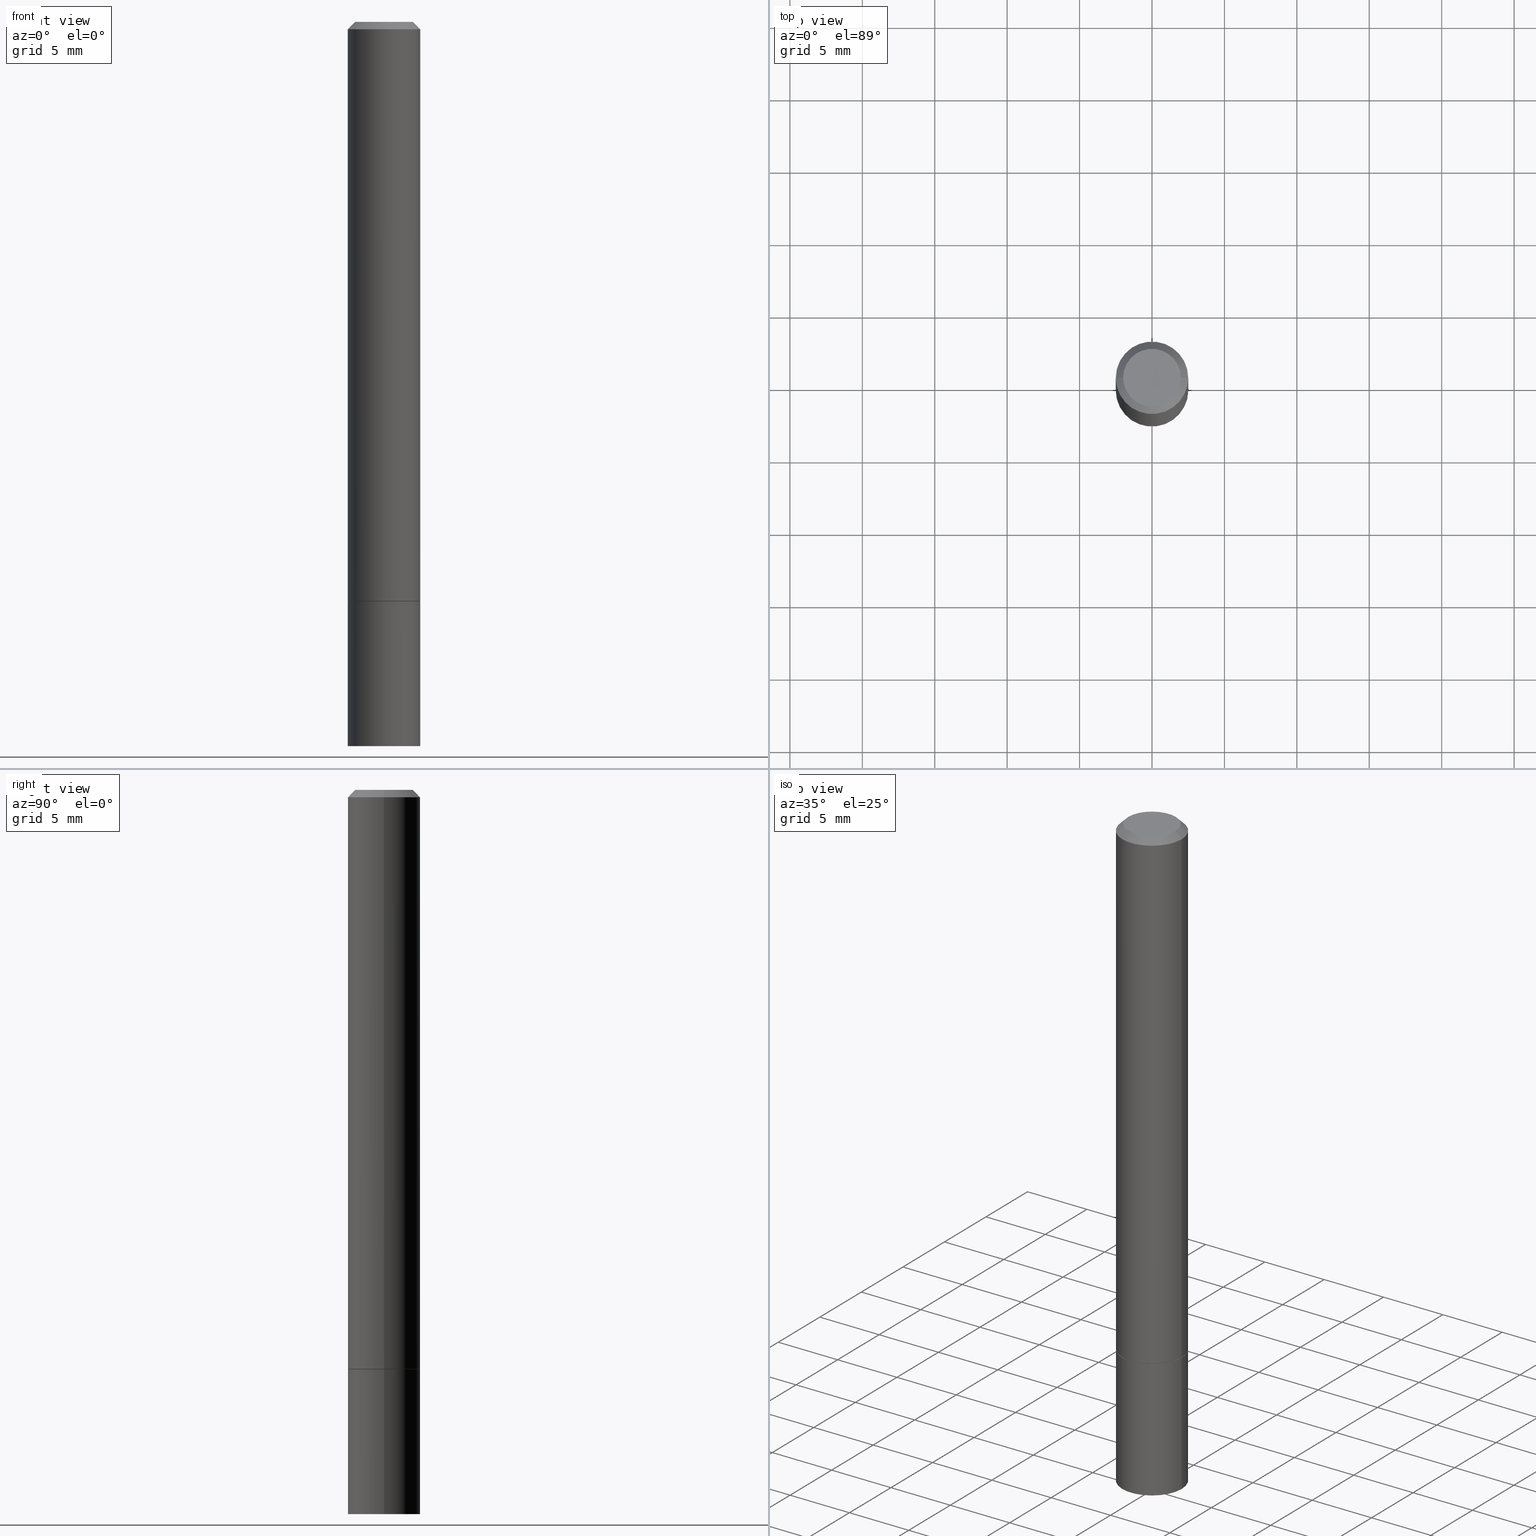
[diagram: canonical four-view strip — front | top / right | iso, engineering-drawing reading convention]
A machine part, canonical four-view strip (front | top / right | iso — engineering-drawing reading convention). The complete STEP part file that produces these views, byte-faithful:
ISO-10303-21;
HEADER;
FILE_DESCRIPTION (( 'STEP AP203' ),
    '1' );
FILE_NAME ('41637.STEP',
    '2024-02-28T02:37:12',
    ( '' ),
    ( '' ),
    'SwSTEP 2.0',
    'SolidWorks 2023',
    '' );
FILE_SCHEMA (( 'CONFIG_CONTROL_DESIGN' ));
ENDSEC;

DATA;
#1 = EDGE_CURVE ( 'NONE', #38, #251, #253, .T. ) ;
#2 = CARTESIAN_POINT ( 'NONE',  ( 0.09844999999999999585, -6.874726756182129545E-16, 4.800596035771099214E-30 ) ) ;
#3 = ORIENTED_EDGE ( 'NONE', *, *, #97, .F. ) ;
#4 = DIRECTION ( 'NONE',  ( 2.445468806185136597E-29, -3.491481338843145583E-15, -1.000000000000000000 ) ) ;
#5 = CARTESIAN_POINT ( 'NONE',  ( 0.000000000000000000, 0.000000000000000000, 0.000000000000000000 ) ) ;
#6 = AXIS2_PLACEMENT_3D ( 'NONE', #232, #221, #342 ) ;
#7 = ADVANCED_FACE ( 'NONE', ( #235 ), #345, .T. ) ;
#8 = CARTESIAN_POINT ( 'NONE',  ( -0.09844999999999999585, -5.486153590605640426E-15, -1.968500000000000139 ) ) ;
#9 = ORIENTED_EDGE ( 'NONE', *, *, #18, .F. ) ;
#10 = ADVANCED_FACE ( 'NONE', ( #113 ), #234, .F. ) ;
#11 = DIRECTION ( 'NONE',  ( -2.445468806185136597E-29, 3.491481338843145583E-15, 1.000000000000000000 ) ) ;
#12 = APPROVAL_STATUS ( 'not_yet_approved' ) ;
#13 = APPLICATION_PROTOCOL_DEFINITION ( 'international standard', 'config_control_design', 1994, #189 ) ;
#14 = APPLICATION_PROTOCOL_DEFINITION ( 'international standard', 'config_control_design', 1994, #115 ) ;
#15 = ORIENTED_EDGE ( 'NONE', *, *, #1, .T. ) ;
#16 = PERSON_AND_ORGANIZATION_ROLE ( 'creator' ) ;
#17 = PLANE ( 'NONE',  #59 ) ;
#18 = EDGE_CURVE ( 'NONE', #323, #251, #33, .T. ) ;
#19 = ORIENTED_EDGE ( 'NONE', *, *, #261, .T. ) ;
#20 = CC_DESIGN_DATE_AND_TIME_ASSIGNMENT ( #63, #65, ( #47 ) ) ;
#21 = VERTEX_POINT ( 'NONE', #343 ) ;
#22 = AXIS2_PLACEMENT_3D ( 'NONE', #29, #202, #55 ) ;
#23 = DIRECTION ( 'NONE',  ( -2.445468806185136597E-29, 3.491481338843145583E-15, 1.000000000000000000 ) ) ;
#24 = DIRECTION ( 'NONE',  ( -1.000000000000000000, 6.982962677686265922E-15, -4.876176775795935793E-29 ) ) ;
#25 = CARTESIAN_POINT ( 'NONE',  ( 3.851124275980352235E-29, -5.498384812410185366E-15, -1.574799999999999756 ) ) ;
#26 = CARTESIAN_POINT ( 'NONE',  ( 0.09844999999999999585, -7.560453691130944267E-15, -1.968500000000000139 ) ) ;
#27 = DIRECTION ( 'NONE',  ( -2.445468806185136597E-29, 3.491481338843145583E-15, 1.000000000000000000 ) ) ;
#28 = LOCAL_TIME ( 21, 37, 12.00000000000000000, #356 ) ;
#29 = CARTESIAN_POINT ( 'NONE',  ( 4.890937612370278413E-31, -6.982962677686297772E-17, -0.02000000000000002123 ) ) ;
#30 = CARTESIAN_POINT ( 'NONE',  ( 3.851124275980352235E-29, -5.498384812410185366E-15, -1.574799999999999756 ) ) ;
#31 = CC_DESIGN_PERSON_AND_ORGANIZATION_ASSIGNMENT ( #128, #16, ( #137 ) ) ;
#32 = DESIGN_CONTEXT ( 'detailed design', #115, 'design' ) ;
#33 = LINE ( 'NONE', #230, #41 ) ;
#34 = LINE ( 'NONE', #240, #316 ) ;
#35 = CIRCLE ( 'NONE', #116, 0.07844999999999982543 ) ;
#36 = ORIENTED_EDGE ( 'NONE', *, *, #261, .F. ) ;
#37 = DIRECTION ( 'NONE',  ( -2.445468806185136597E-29, 3.491481338843145583E-15, 1.000000000000000000 ) ) ;
#38 = VERTEX_POINT ( 'NONE', #210 ) ;
#39 = PERSON_AND_ORGANIZATION ( #227, #163 ) ;
#40 = FACE_OUTER_BOUND ( 'NONE', #126, .T. ) ;
#41 = VECTOR ( 'NONE', #89, 39.37007874015748143 ) ;
#42 = APPROVAL_DATE_TIME ( #295, #78 ) ;
#43 = LENGTH_MEASURE_WITH_UNIT ( LENGTH_MEASURE( 0.02539999999999999897 ), #74 );
#44 = DIRECTION ( 'NONE',  ( 0.000000000000000000, 0.000000000000000000, 1.000000000000000000 ) ) ;
#45 = ORIENTED_EDGE ( 'NONE', *, *, #151, .F. ) ;
#46 = AXIS2_PLACEMENT_3D ( 'NONE', #314, #4, #286 ) ;
#47 = SECURITY_CLASSIFICATION ( '', '', #148 ) ;
#48 = AXIS2_PLACEMENT_3D ( 'NONE', #312, #56, #256 ) ;
#49 = EDGE_CURVE ( 'NONE', #134, #38, #350, .T. ) ;
#50 = ORIENTED_EDGE ( 'NONE', *, *, #358, .T. ) ;
#51 = ORIENTED_EDGE ( 'NONE', *, *, #313, .F. ) ;
#52 = CARTESIAN_POINT ( 'NONE',  ( 3.851124275980352235E-29, -5.498384812410185366E-15, -1.574799999999999756 ) ) ;
#53 = EDGE_LOOP ( 'NONE', ( #71, #276, #100, #272 ) ) ;
#54 = DIRECTION ( 'NONE',  ( -2.438088387897960049E-29, 3.491481338843145188E-15, 1.000000000000000000 ) ) ;
#55 = DIRECTION ( 'NONE',  ( -1.000000000000000000, 6.982962677686266711E-15, 0.000000000000000000 ) ) ;
#56 = DIRECTION ( 'NONE',  ( -2.445468806185136597E-29, 3.491481338843145583E-15, 1.000000000000000000 ) ) ;
#57 = DIRECTION ( 'NONE',  ( 1.000000000000000000, -6.982962677686266711E-15, 4.876176775795936353E-29 ) ) ;
#58 = AXIS2_PLACEMENT_3D ( 'NONE', #280, #114, #57 ) ;
#59 = AXIS2_PLACEMENT_3D ( 'NONE', #133, #330, #203 ) ;
#60 = CARTESIAN_POINT ( 'NONE',  ( 6.874726756182609764E-16, 0.09844999999999311247, -1.968500000000000361 ) ) ;
#61 = DIRECTION ( 'NONE',  ( 1.000000000000000000, -6.982962677686264344E-15, 0.000000000000000000 ) ) ;
#62 = CARTESIAN_POINT ( 'NONE',  ( -0.09844999999999980156, 6.176430488413486702E-16, -0.02000000000000002123 ) ) ;
#63 = DATE_AND_TIME ( #93, #254 ) ;
#64 = LINE ( 'NONE', #178, #90 ) ;
#65 = DATE_TIME_ROLE ( 'classification_date' ) ;
#66 = VERTEX_POINT ( 'NONE', #147 ) ;
#67 = PERSON_AND_ORGANIZATION_ROLE ( 'design_owner' ) ;
#68 = ADVANCED_FACE ( 'NONE', ( #117 ), #205, .T. ) ;
#69 = COORDINATED_UNIVERSAL_TIME_OFFSET ( 5, 0, .BEHIND. ) ;
#70 = FACE_OUTER_BOUND ( 'NONE', #53, .T. ) ;
#71 = ORIENTED_EDGE ( 'NONE', *, *, #211, .T. ) ;
#72 = AXIS2_PLACEMENT_3D ( 'NONE', #160, #275, #111 ) ;
#73 = PERSON_AND_ORGANIZATION_ROLE ( 'design_supplier' ) ;
#74 =( LENGTH_UNIT ( ) NAMED_UNIT ( * ) SI_UNIT ( $, .METRE. ) );
#75 = ADVANCED_FACE ( 'NONE', ( #172 ), #91, .T. ) ;
#76 =( NAMED_UNIT ( * ) SI_UNIT ( $, .STERADIAN. ) SOLID_ANGLE_UNIT ( ) );
#77 = LINE ( 'NONE', #2, #136 ) ;
#78 = APPROVAL ( #12, 'UNSPECIFIED' ) ;
#79 = ORIENTED_EDGE ( 'NONE', *, *, #309, .F. ) ;
#80 = CC_DESIGN_SECURITY_CLASSIFICATION ( #47, ( #288 ) ) ;
#81 = VERTEX_POINT ( 'NONE', #344 ) ;
#82 = VERTEX_POINT ( 'NONE', #26 ) ;
#83 = DIRECTION ( 'NONE',  ( -2.445468806185136597E-29, 3.491481338843145583E-15, 1.000000000000000000 ) ) ;
#84 = CLOSED_SHELL ( 'NONE', ( #68, #108, #10, #153 ) ) ;
#85 = LOCAL_TIME ( 21, 37, 12.00000000000000000, #182 ) ;
#86 = DIRECTION ( 'NONE',  ( 2.438088387897960049E-29, -3.491481338843145188E-15, -1.000000000000000000 ) ) ;
#87 = CARTESIAN_POINT ( 'NONE',  ( 3.851124275980353356E-29, -5.498384812410186155E-15, -1.574800000000000200 ) ) ;
#88 = DIRECTION ( 'NONE',  ( -2.445468806185136597E-29, 3.491481338843145583E-15, 1.000000000000000000 ) ) ;
#89 = DIRECTION ( 'NONE',  ( -2.445468806185136877E-29, 3.491481338843145188E-15, 1.000000000000000000 ) ) ;
#90 = VECTOR ( 'NONE', #191, 39.37007874015748143 ) ;
#91 = CYLINDRICAL_SURFACE ( 'NONE', #284, 0.09844999999999991258 ) ;
#92 = FACE_OUTER_BOUND ( 'NONE', #359, .T. ) ;
#93 = CALENDAR_DATE ( 2024, 27, 2 ) ;
#94 = DIRECTION ( 'NONE',  ( -2.445468806185136597E-29, 3.491481338843145583E-15, 1.000000000000000000 ) ) ;
#95 = AXIS2_PLACEMENT_3D ( 'NONE', #217, #37, #326 ) ;
#96 = DIRECTION ( 'NONE',  ( 0.7071067811865466846, -7.319954787623252890E-15, -0.7071067811865483499 ) ) ;
#97 = EDGE_CURVE ( 'NONE', #66, #251, #122, .T. ) ;
#98 = PERSON_AND_ORGANIZATION ( #227, #163 ) ;
#99 =( NAMED_UNIT ( * ) PLANE_ANGLE_UNIT ( ) SI_UNIT ( $, .RADIAN. ) );
#100 = ORIENTED_EDGE ( 'NONE', *, *, #267, .F. ) ;
#101 = LINE ( 'NONE', #229, #300 ) ;
#102 = ORIENTED_EDGE ( 'NONE', *, *, #18, .T. ) ;
#103 = AXIS2_PLACEMENT_3D ( 'NONE', #285, #206, #315 ) ;
#104 = AXIS2_PLACEMENT_3D ( 'NONE', #292, #348, #242 ) ;
#105 = ORIENTED_EDGE ( 'NONE', *, *, #151, .T. ) ;
#106 = ORIENTED_EDGE ( 'NONE', *, *, #142, .F. ) ;
#107 = DIRECTION ( 'NONE',  ( 1.000000000000000000, -6.982962677686265922E-15, 4.876176775795935793E-29 ) ) ;
#108 = ADVANCED_FACE ( 'NONE', ( #283 ), #146, .T. ) ;
#109 = CONICAL_SURFACE ( 'NONE', #194, 0.09744999999999999496, 0.7853981633975507526 ) ;
#110 = CARTESIAN_POINT ( 'NONE',  ( -0.09844999999999980156, 6.176430488413486702E-16, -0.02000000000000002123 ) ) ;
#111 = DIRECTION ( 'NONE',  ( 1.000000000000000000, -6.982962677686265922E-15, 0.000000000000000000 ) ) ;
#112 = ADVANCED_FACE ( 'NONE', ( #174 ), #296, .T. ) ;
#113 = FACE_OUTER_BOUND ( 'NONE', #248, .T. ) ;
#114 = DIRECTION ( 'NONE',  ( -2.445468806185136597E-29, 3.491481338843145583E-15, 1.000000000000000000 ) ) ;
#115 = APPLICATION_CONTEXT ( 'configuration controlled 3d designs of mechanical parts and assemblies' ) ;
#116 = AXIS2_PLACEMENT_3D ( 'NONE', #308, #23, #138 ) ;
#117 = FACE_OUTER_BOUND ( 'NONE', #193, .T. ) ;
#118 = ADVANCED_BREP_SHAPE_REPRESENTATION ( '41637', ( #317, #311, #177 ), #260 ) ;
#119 = FACE_OUTER_BOUND ( 'NONE', #246, .T. ) ;
#120 = PERSON_AND_ORGANIZATION_ROLE ( 'classification_officer' ) ;
#121 = PERSON_AND_ORGANIZATION ( #227, #163 ) ;
#122 = CIRCLE ( 'NONE', #103, 0.09844999999999980156 ) ;
#123 = DIRECTION ( 'NONE',  ( 1.000000000000000000, -6.982962677686264344E-15, 0.000000000000000000 ) ) ;
#124 = AXIS2_PLACEMENT_3D ( 'NONE', #281, #83, #279 ) ;
#125 = SHAPE_DEFINITION_REPRESENTATION ( #190, #118 ) ;
#126 = EDGE_LOOP ( 'NONE', ( #152, #102, #3, #327 ) ) ;
#127 = APPROVAL_STATUS ( 'not_yet_approved' ) ;
#128 = PERSON_AND_ORGANIZATION ( #227, #163 ) ;
#129 = CARTESIAN_POINT ( 'NONE',  ( 0.09844999999999999585, -6.182366006689555708E-15, -1.573800000000000088 ) ) ;
#130 = CALENDAR_DATE ( 2024, 27, 2 ) ;
#131 = ORIENTED_EDGE ( 'NONE', *, *, #220, .T. ) ;
#132 = ADVANCED_FACE ( 'NONE', ( #92 ), #236, .T. ) ;
#133 = CARTESIAN_POINT ( 'NONE',  ( 5.478134220644863581E-16, 0.07844999999999982543, -2.739067110322441651E-16 ) ) ;
#134 = VERTEX_POINT ( 'NONE', #319 ) ;
#135 = ORIENTED_EDGE ( 'NONE', *, *, #223, .T. ) ;
#136 = VECTOR ( 'NONE', #363, 39.37007874015748143 ) ;
#137 = PRODUCT_DEFINITION ( 'UNKNOWN', '', #288, #32 ) ;
#138 = DIRECTION ( 'NONE',  ( 1.000000000000000000, -6.982962677686265922E-15, 4.876176775795936914E-29 ) ) ;
#139 = CARTESIAN_POINT ( 'NONE',  ( 6.874726756182513129E-16, 0.09844999999999450024, -1.574800000000000422 ) ) ;
#140 = DIRECTION ( 'NONE',  ( -2.445468806185136877E-29, 3.491481338843145188E-15, 1.000000000000000000 ) ) ;
#141 = DIRECTION ( 'NONE',  ( 1.000000000000000000, -6.982962677686265922E-15, 0.000000000000000000 ) ) ;
#142 = EDGE_CURVE ( 'NONE', #82, #150, #155, .T. ) ;
#143 = CARTESIAN_POINT ( 'NONE',  ( 0.09744999999999999496, -6.178874525350711912E-15, -1.574799999999999756 ) ) ;
#144 = LOCAL_TIME ( 21, 37, 12.00000000000000000, #290 ) ;
#145 = DIRECTION ( 'NONE',  ( -2.445468806185136597E-29, 3.491481338843145583E-15, 1.000000000000000000 ) ) ;
#146 = PLANE ( 'NONE',  #333 ) ;
#147 = CARTESIAN_POINT ( 'NONE',  ( 0.09844999999999980156, -7.452456546574689274E-16, -0.02000000000000002123 ) ) ;
#148 = SECURITY_CLASSIFICATION_LEVEL ( 'unclassified' ) ;
#149 = APPROVAL_PERSON_ORGANIZATION ( #238, #204, #241 ) ;
#150 = VERTEX_POINT ( 'NONE', #8 ) ;
#151 = EDGE_CURVE ( 'NONE', #150, #21, #216, .T. ) ;
#152 = ORIENTED_EDGE ( 'NONE', *, *, #267, .T. ) ;
#153 = ADVANCED_FACE ( 'NONE', ( #119 ), #180, .T. ) ;
#154 = DATE_AND_TIME ( #219, #28 ) ;
#155 = CIRCLE ( 'NONE', #268, 0.09844999999999999585 ) ;
#156 = CARTESIAN_POINT ( 'NONE',  ( 4.890937612370278413E-31, -6.982962677686297772E-17, -0.02000000000000002123 ) ) ;
#157 = VECTOR ( 'NONE', #353, 39.37007874015748143 ) ;
#158 = APPROVAL_ROLE ( '' ) ;
#159 =( CONVERSION_BASED_UNIT ( 'INCH', #43 ) LENGTH_UNIT ( ) NAMED_UNIT ( #176 ) );
#160 = CARTESIAN_POINT ( 'NONE',  ( 4.813905344975441835E-29, -6.872981015512731707E-15, -1.968500000000000139 ) ) ;
#161 = ADVANCED_FACE ( 'NONE', ( #40 ), #287, .T. ) ;
#162 = ORIENTED_EDGE ( 'NONE', *, *, #263, .F. ) ;
#163 = ORGANIZATION ( 'UNSPECIFIED', 'UNSPECIFIED', '' ) ;
#164 = ORIENTED_EDGE ( 'NONE', *, *, #289, .F. ) ;
#165 = VERTEX_POINT ( 'NONE', #129 ) ;
#166 = CC_DESIGN_PERSON_AND_ORGANIZATION_ASSIGNMENT ( #347, #120, ( #47 ) ) ;
#167 = ORIENTED_EDGE ( 'NONE', *, *, #211, .F. ) ;
#168 = AXIS2_PLACEMENT_3D ( 'NONE', #52, #357, #170 ) ;
#169 = CARTESIAN_POINT ( 'NONE',  ( 0.000000000000000000, 0.000000000000000000, 0.000000000000000000 ) ) ;
#170 = DIRECTION ( 'NONE',  ( 1.000000000000000000, -6.982962677686264344E-15, 0.000000000000000000 ) ) ;
#171 = CARTESIAN_POINT ( 'NONE',  ( 4.813905344975441835E-29, -6.872981015512731707E-15, -1.968500000000000139 ) ) ;
#172 = FACE_OUTER_BOUND ( 'NONE', #181, .T. ) ;
#173 = AXIS2_PLACEMENT_3D ( 'NONE', #25, #54, #107 ) ;
#174 = FACE_OUTER_BOUND ( 'NONE', #291, .T. ) ;
#175 = CALENDAR_DATE ( 2024, 27, 2 ) ;
#176 = DIMENSIONAL_EXPONENTS ( 1.000000000000000000, 0.000000000000000000, 0.000000000000000000, 0.000000000000000000, 0.000000000000000000, 0.000000000000000000, 0.000000000000000000 ) ;
#177 = AXIS2_PLACEMENT_3D ( 'NONE', #298, #44, #328 ) ;
#178 = CARTESIAN_POINT ( 'NONE',  ( -0.09744999999999999496, -4.805960916411968264E-15, -1.574799999999999756 ) ) ;
#179 = PERSON_AND_ORGANIZATION ( #227, #163 ) ;
#180 = CYLINDRICAL_SURFACE ( 'NONE', #104, 0.09844999999999999585 ) ;
#181 = EDGE_LOOP ( 'NONE', ( #9, #50, #301, #198 ) ) ;
#182 = COORDINATED_UNIVERSAL_TIME_OFFSET ( 5, 0, .BEHIND. ) ;
#183 = CARTESIAN_POINT ( 'NONE',  ( 0.09744999999999999496, -6.178874525350711912E-15, -1.574799999999999756 ) ) ;
#184 = ORIENTED_EDGE ( 'NONE', *, *, #1, .F. ) ;
#185 = CALENDAR_DATE ( 2024, 27, 2 ) ;
#186 = AXIS2_PLACEMENT_3D ( 'NONE', #30, #318, #61 ) ;
#187 = DIRECTION ( 'NONE',  ( 0.7071067811866199593, -2.468850131083015945E-15, 0.7071067811864750752 ) ) ;
#188 = CIRCLE ( 'NONE', #124, 0.09844999999999999585 ) ;
#189 = APPLICATION_CONTEXT ( 'configuration controlled 3d designs of mechanical parts and assemblies' ) ;
#190 = PRODUCT_DEFINITION_SHAPE ( 'NONE', 'NONE',  #137 ) ;
#191 = DIRECTION ( 'NONE',  ( -0.7071067811866199593, 7.493145998870616062E-15, 0.7071067811864750752 ) ) ;
#192 = AXIS2_PLACEMENT_3D ( 'NONE', #5, #88, #257 ) ;
#193 = EDGE_LOOP ( 'NONE', ( #293, #105, #79, #36 ) ) ;
#194 = AXIS2_PLACEMENT_3D ( 'NONE', #264, #11, #123 ) ;
#195 = ORIENTED_EDGE ( 'NONE', *, *, #263, .T. ) ;
#196 = CC_DESIGN_PERSON_AND_ORGANIZATION_ASSIGNMENT ( #39, #67, ( #299 ) ) ;
#197 = EDGE_LOOP ( 'NONE', ( #167, #162 ) ) ;
#198 = ORIENTED_EDGE ( 'NONE', *, *, #223, .F. ) ;
#199 = CIRCLE ( 'NONE', #6, 0.09844999999999999585 ) ;
#200 = DIRECTION ( 'NONE',  ( 1.000000000000000000, -6.982962677686265922E-15, 0.000000000000000000 ) ) ;
#201 = ADVANCED_FACE ( 'NONE', ( #70 ), #109, .T. ) ;
#202 = DIRECTION ( 'NONE',  ( 2.445468806185136597E-29, -3.491481338843145583E-15, -1.000000000000000000 ) ) ;
#203 = DIRECTION ( 'NONE',  ( -1.000000000000000000, 6.982962677686265922E-15, -4.876176775795935793E-29 ) ) ;
#204 = APPROVAL ( #127, 'UNSPECIFIED' ) ;
#205 = CYLINDRICAL_SURFACE ( 'NONE', #58, 0.09844999999999999585 ) ;
#206 = DIRECTION ( 'NONE',  ( -2.445468806185136597E-29, 3.491481338843145583E-15, 1.000000000000000000 ) ) ;
#207 = APPROVAL_STATUS ( 'not_yet_approved' ) ;
#208 = CIRCLE ( 'NONE', #297, 0.09744999999999999496 ) ;
#209 = DATE_AND_TIME ( #175, #144 ) ;
#210 = CARTESIAN_POINT ( 'NONE',  ( -0.07844999999999982543, 5.827282354529176128E-16, -3.953055038153092165E-30 ) ) ;
#211 = EDGE_CURVE ( 'NONE', #336, #259, #208, .T. ) ;
#212 = DIRECTION ( 'NONE',  ( -2.445468806185136597E-29, 3.491481338843145583E-15, 1.000000000000000000 ) ) ;
#213 = PRODUCT_RELATED_PRODUCT_CATEGORY ( 'detail', '', ( #299 ) ) ;
#214 = CC_DESIGN_APPROVAL ( #78, ( #288 ) ) ;
#215 = APPROVAL_ROLE ( '' ) ;
#216 = LINE ( 'NONE', #322, #157 ) ;
#217 = CARTESIAN_POINT ( 'NONE',  ( 0.000000000000000000, 0.000000000000000000, 0.000000000000000000 ) ) ;
#218 = DIRECTION ( 'NONE',  ( 1.000000000000000000, -6.982962677686264344E-15, 0.000000000000000000 ) ) ;
#219 = CALENDAR_DATE ( 2024, 27, 2 ) ;
#220 = EDGE_CURVE ( 'NONE', #134, #66, #34, .T. ) ;
#221 = DIRECTION ( 'NONE',  ( -2.445468806185136597E-29, 3.491481338843145583E-15, 1.000000000000000000 ) ) ;
#222 = EDGE_LOOP ( 'NONE', ( #224, #131, #306, #184 ) ) ;
#223 = EDGE_CURVE ( 'NONE', #251, #66, #250, .T. ) ;
#224 = ORIENTED_EDGE ( 'NONE', *, *, #49, .F. ) ;
#225 = AXIS2_PLACEMENT_3D ( 'NONE', #87, #27, #200 ) ;
#226 = EDGE_LOOP ( 'NONE', ( #302, #361 ) ) ;
#227 = PERSON ( 'UNSPECIFIED', 'UNSPECIFIED', 'UNSPECIFIED', ('UNSPECIFIED'), ('UNSPECIFIED'), ('UNSPECIFIED') ) ;
#228 = EDGE_LOOP ( 'NONE', ( #106, #164 ) ) ;
#229 = CARTESIAN_POINT ( 'NONE',  ( 0.09844999999999991258, -6.874726756182123629E-16, 4.800596035771094310E-30 ) ) ;
#230 = CARTESIAN_POINT ( 'NONE',  ( -0.09844999999999991258, 6.995293233558180118E-16, -4.842691596355949838E-30 ) ) ;
#231 = CIRCLE ( 'NONE', #168, 0.09744999999999999496 ) ;
#232 = CARTESIAN_POINT ( 'NONE',  ( 3.851124275980353356E-29, -5.498384812410186155E-15, -1.574800000000000200 ) ) ;
#233 = DIRECTION ( 'NONE',  ( -1.000000000000000000, 6.982962677686265922E-15, -4.876176775795935793E-29 ) ) ;
#234 = PLANE ( 'NONE',  #274 ) ;
#235 = FACE_OUTER_BOUND ( 'NONE', #222, .T. ) ;
#236 = CONICAL_SURFACE ( 'NONE', #22, 0.09844999999999980156, 0.7853981633974471688 ) ;
#237 = DIRECTION ( 'NONE',  ( 1.000000000000000000, -6.982962677686266711E-15, 4.876176775795935793E-29 ) ) ;
#238 = PERSON_AND_ORGANIZATION ( #227, #163 ) ;
#239 = CC_DESIGN_APPROVAL ( #337, ( #47 ) ) ;
#240 = CARTESIAN_POINT ( 'NONE',  ( 0.09844999999999980156, -7.452456546574689274E-16, -0.02000000000000002123 ) ) ;
#241 = APPROVAL_ROLE ( '' ) ;
#242 = DIRECTION ( 'NONE',  ( 1.000000000000000000, -6.982962677686266711E-15, 4.876176775795936353E-29 ) ) ;
#243 = EDGE_CURVE ( 'NONE', #336, #165, #269, .T. ) ;
#244 = CARTESIAN_POINT ( 'NONE',  ( 3.851124275980352235E-29, -5.498384812410185366E-15, -1.574799999999999756 ) ) ;
#245 = CC_DESIGN_DATE_AND_TIME_ASSIGNMENT ( #154, #331, ( #137 ) ) ;
#246 = EDGE_LOOP ( 'NONE', ( #45, #304, #19, #349 ) ) ;
#247 = CC_DESIGN_PERSON_AND_ORGANIZATION_ASSIGNMENT ( #270, #355, ( #288 ) ) ;
#248 = EDGE_LOOP ( 'NONE', ( #249, #324 ) ) ;
#249 = ORIENTED_EDGE ( 'NONE', *, *, #309, .T. ) ;
#250 = CIRCLE ( 'NONE', #360, 0.09844999999999980156 ) ;
#251 = VERTEX_POINT ( 'NONE', #62 ) ;
#252 = PLANE ( 'NONE',  #173 ) ;
#253 = LINE ( 'NONE', #110, #266 ) ;
#254 = LOCAL_TIME ( 21, 37, 12.00000000000000000, #321 ) ;
#255 = CC_DESIGN_APPROVAL ( #204, ( #137 ) ) ;
#256 = DIRECTION ( 'NONE',  ( 1.000000000000000000, -6.982962677686265922E-15, 0.000000000000000000 ) ) ;
#257 = DIRECTION ( 'NONE',  ( 1.000000000000000000, -6.982962677686265922E-15, 4.876176775795936914E-29 ) ) ;
#258 = EDGE_CURVE ( 'NONE', #259, #323, #64, .T. ) ;
#259 = VERTEX_POINT ( 'NONE', #271 ) ;
#260 =( GEOMETRIC_REPRESENTATION_CONTEXT ( 3 ) GLOBAL_UNCERTAINTY_ASSIGNED_CONTEXT ( ( #364 ) ) GLOBAL_UNIT_ASSIGNED_CONTEXT ( ( #159, #99, #76 ) ) REPRESENTATION_CONTEXT ( 'NONE', 'WORKASPACE' ) );
#261 = EDGE_CURVE ( 'NONE', #82, #81, #77, .T. ) ;
#262 = APPROVAL_DATE_TIME ( #209, #337 ) ;
#263 = EDGE_CURVE ( 'NONE', #259, #336, #231, .T. ) ;
#264 = CARTESIAN_POINT ( 'NONE',  ( 3.851124275980352235E-29, -5.498384812410185366E-15, -1.574799999999999756 ) ) ;
#265 = ORIENTED_EDGE ( 'NONE', *, *, #358, .F. ) ;
#266 = VECTOR ( 'NONE', #340, 39.37007874015748143 ) ;
#267 = EDGE_CURVE ( 'NONE', #165, #323, #188, .T. ) ;
#268 = AXIS2_PLACEMENT_3D ( 'NONE', #171, #282, #141 ) ;
#269 = LINE ( 'NONE', #183, #307 ) ;
#270 = PERSON_AND_ORGANIZATION ( #227, #163 ) ;
#271 = CARTESIAN_POINT ( 'NONE',  ( -0.09744999999999999496, -4.800662462063745861E-15, -1.574799999999999756 ) ) ;
#272 = ORIENTED_EDGE ( 'NONE', *, *, #243, .F. ) ;
#273 = MECHANICAL_CONTEXT ( 'NONE', #189, 'mechanical' ) ;
#274 = AXIS2_PLACEMENT_3D ( 'NONE', #139, #310, #233 ) ;
#275 = DIRECTION ( 'NONE',  ( -2.445468806185136597E-29, 3.491481338843145583E-15, 1.000000000000000000 ) ) ;
#276 = ORIENTED_EDGE ( 'NONE', *, *, #258, .T. ) ;
#277 = ORIENTED_EDGE ( 'NONE', *, *, #220, .F. ) ;
#278 = CIRCLE ( 'NONE', #225, 0.09844999999999999585 ) ;
#279 = DIRECTION ( 'NONE',  ( 1.000000000000000000, -6.982962677686265922E-15, 0.000000000000000000 ) ) ;
#280 = CARTESIAN_POINT ( 'NONE',  ( 0.000000000000000000, 0.000000000000000000, 0.000000000000000000 ) ) ;
#281 = CARTESIAN_POINT ( 'NONE',  ( 3.848678807174168313E-29, -5.494893331071342359E-15, -1.573800000000000088 ) ) ;
#282 = DIRECTION ( 'NONE',  ( -2.445468806185136597E-29, 3.491481338843145583E-15, 1.000000000000000000 ) ) ;
#283 = FACE_OUTER_BOUND ( 'NONE', #228, .T. ) ;
#284 = AXIS2_PLACEMENT_3D ( 'NONE', #169, #145, #237 ) ;
#285 = CARTESIAN_POINT ( 'NONE',  ( 4.890937612370278413E-31, -6.982962677686297772E-17, -0.02000000000000002123 ) ) ;
#286 = DIRECTION ( 'NONE',  ( -1.000000000000000000, 6.982962677686266711E-15, 0.000000000000000000 ) ) ;
#287 = CYLINDRICAL_SURFACE ( 'NONE', #95, 0.09844999999999991258 ) ;
#288 = PRODUCT_DEFINITION_FORMATION_WITH_SPECIFIED_SOURCE ( 'ANY', '', #299, .NOT_KNOWN. ) ;
#289 = EDGE_CURVE ( 'NONE', #150, #82, #334, .T. ) ;
#290 = COORDINATED_UNIVERSAL_TIME_OFFSET ( 5, 0, .BEHIND. ) ;
#291 = EDGE_LOOP ( 'NONE', ( #346, #195, #365, #265 ) ) ;
#292 = CARTESIAN_POINT ( 'NONE',  ( 0.000000000000000000, 0.000000000000000000, 0.000000000000000000 ) ) ;
#293 = ORIENTED_EDGE ( 'NONE', *, *, #142, .T. ) ;
#294 = CC_DESIGN_PERSON_AND_ORGANIZATION_ASSIGNMENT ( #98, #73, ( #288 ) ) ;
#295 = DATE_AND_TIME ( #185, #366 ) ;
#296 = CONICAL_SURFACE ( 'NONE', #186, 0.09744999999999999496, 0.7853981633975507526 ) ;
#297 = AXIS2_PLACEMENT_3D ( 'NONE', #244, #94, #218 ) ;
#298 = CARTESIAN_POINT ( 'NONE',  ( 0.000000000000000000, 0.000000000000000000, 0.000000000000000000 ) ) ;
#299 = PRODUCT ( '41637', '41637', '', ( #273 ) ) ;
#300 = VECTOR ( 'NONE', #140, 39.37007874015748143 ) ;
#301 = ORIENTED_EDGE ( 'NONE', *, *, #303, .T. ) ;
#302 = ORIENTED_EDGE ( 'NONE', *, *, #313, .T. ) ;
#303 = EDGE_CURVE ( 'NONE', #165, #66, #101, .T. ) ;
#304 = ORIENTED_EDGE ( 'NONE', *, *, #289, .T. ) ;
#305 = EDGE_CURVE ( 'NONE', #21, #81, #199, .T. ) ;
#306 = ORIENTED_EDGE ( 'NONE', *, *, #97, .T. ) ;
#307 = VECTOR ( 'NONE', #187, 39.37007874015748143 ) ;
#308 = CARTESIAN_POINT ( 'NONE',  ( 0.000000000000000000, 0.000000000000000000, 0.000000000000000000 ) ) ;
#309 = EDGE_CURVE ( 'NONE', #81, #21, #278, .T. ) ;
#310 = DIRECTION ( 'NONE',  ( 2.438088387897960049E-29, -3.491481338843145188E-15, -1.000000000000000000 ) ) ;
#311 = MANIFOLD_SOLID_BREP ( 'Body-Move/Copy2[2]', #339 ) ;
#312 = CARTESIAN_POINT ( 'NONE',  ( 3.848678807174168313E-29, -5.494893331071342359E-15, -1.573800000000000088 ) ) ;
#313 = EDGE_CURVE ( 'NONE', #38, #134, #35, .T. ) ;
#314 = CARTESIAN_POINT ( 'NONE',  ( 4.890937612370278413E-31, -6.982962677686297772E-17, -0.02000000000000002123 ) ) ;
#315 = DIRECTION ( 'NONE',  ( 1.000000000000000000, -6.982962677686266711E-15, 0.000000000000000000 ) ) ;
#316 = VECTOR ( 'NONE', #96, 39.37007874015748143 ) ;
#317 = MANIFOLD_SOLID_BREP ( 'Body-Move/Copy2[1]', #84 ) ;
#318 = DIRECTION ( 'NONE',  ( -2.445468806185136597E-29, 3.491481338843145583E-15, 1.000000000000000000 ) ) ;
#319 = CARTESIAN_POINT ( 'NONE',  ( 0.07844999999999982543, -6.417258612913221441E-16, 4.159044147803931210E-30 ) ) ;
#320 = DIRECTION ( 'NONE',  ( 1.000000000000000000, -6.982962677686266711E-15, 0.000000000000000000 ) ) ;
#321 = COORDINATED_UNIVERSAL_TIME_OFFSET ( 5, 0, .BEHIND. ) ;
#322 = CARTESIAN_POINT ( 'NONE',  ( -0.09844999999999999585, 6.995293233558186035E-16, -4.842691596355954042E-30 ) ) ;
#323 = VERTEX_POINT ( 'NONE', #362 ) ;
#324 = ORIENTED_EDGE ( 'NONE', *, *, #305, .T. ) ;
#325 = APPROVAL_DATE_TIME ( #354, #204 ) ;
#326 = DIRECTION ( 'NONE',  ( 1.000000000000000000, -6.982962677686266711E-15, 4.876176775795935793E-29 ) ) ;
#327 = ORIENTED_EDGE ( 'NONE', *, *, #303, .F. ) ;
#328 = DIRECTION ( 'NONE',  ( 1.000000000000000000, 0.000000000000000000, 0.000000000000000000 ) ) ;
#329 = CIRCLE ( 'NONE', #48, 0.09844999999999999585 ) ;
#330 = DIRECTION ( 'NONE',  ( 2.438088387897960049E-29, -3.491481338843145188E-15, -1.000000000000000000 ) ) ;
#331 = DATE_TIME_ROLE ( 'creation_date' ) ;
#332 = FACE_OUTER_BOUND ( 'NONE', #197, .T. ) ;
#333 = AXIS2_PLACEMENT_3D ( 'NONE', #60, #86, #24 ) ;
#334 = CIRCLE ( 'NONE', #72, 0.09844999999999999585 ) ;
#335 = ADVANCED_FACE ( 'NONE', ( #332 ), #252, .F. ) ;
#336 = VERTEX_POINT ( 'NONE', #143 ) ;
#337 = APPROVAL ( #207, 'UNSPECIFIED' ) ;
#338 = FACE_OUTER_BOUND ( 'NONE', #226, .T. ) ;
#339 = CLOSED_SHELL ( 'NONE', ( #201, #161, #7, #132, #75, #112, #335, #352 ) ) ;
#340 = DIRECTION ( 'NONE',  ( -0.7071067811865466846, 2.468850131082247989E-15, -0.7071067811865483499 ) ) ;
#341 = APPROVAL_PERSON_ORGANIZATION ( #121, #78, #158 ) ;
#342 = DIRECTION ( 'NONE',  ( 1.000000000000000000, -6.982962677686265922E-15, 0.000000000000000000 ) ) ;
#343 = CARTESIAN_POINT ( 'NONE',  ( -0.09844999999999999585, -5.486153590605640426E-15, -1.574800000000000200 ) ) ;
#344 = CARTESIAN_POINT ( 'NONE',  ( 0.09844999999999999585, -6.185857488028398715E-15, -1.574800000000000200 ) ) ;
#345 = CONICAL_SURFACE ( 'NONE', #46, 0.09844999999999980156, 0.7853981633974471688 ) ;
#346 = ORIENTED_EDGE ( 'NONE', *, *, #258, .F. ) ;
#347 = PERSON_AND_ORGANIZATION ( #227, #163 ) ;
#348 = DIRECTION ( 'NONE',  ( -2.445468806185136597E-29, 3.491481338843145583E-15, 1.000000000000000000 ) ) ;
#349 = ORIENTED_EDGE ( 'NONE', *, *, #305, .F. ) ;
#350 = CIRCLE ( 'NONE', #192, 0.07844999999999982543 ) ;
#351 = APPROVAL_PERSON_ORGANIZATION ( #179, #337, #215 ) ;
#352 = ADVANCED_FACE ( 'NONE', ( #338 ), #17, .F. ) ;
#353 = DIRECTION ( 'NONE',  ( -2.445468806185136877E-29, 3.491481338843145188E-15, 1.000000000000000000 ) ) ;
#354 = DATE_AND_TIME ( #130, #85 ) ;
#355 = PERSON_AND_ORGANIZATION_ROLE ( 'creator' ) ;
#356 = COORDINATED_UNIVERSAL_TIME_OFFSET ( 5, 0, .BEHIND. ) ;
#357 = DIRECTION ( 'NONE',  ( -2.445468806185136597E-29, 3.491481338843145583E-15, 1.000000000000000000 ) ) ;
#358 = EDGE_CURVE ( 'NONE', #323, #165, #329, .T. ) ;
#359 = EDGE_LOOP ( 'NONE', ( #277, #51, #15, #135 ) ) ;
#360 = AXIS2_PLACEMENT_3D ( 'NONE', #156, #212, #320 ) ;
#361 = ORIENTED_EDGE ( 'NONE', *, *, #49, .T. ) ;
#362 = CARTESIAN_POINT ( 'NONE',  ( -0.09844999999999999585, -2.082832155568282351E-15, -1.573800000000000088 ) ) ;
#363 = DIRECTION ( 'NONE',  ( -2.445468806185136877E-29, 3.491481338843145188E-15, 1.000000000000000000 ) ) ;
#364 = UNCERTAINTY_MEASURE_WITH_UNIT (LENGTH_MEASURE( 1.000000000000000082E-05 ), #159, 'distance_accuracy_value', 'NONE');
#365 = ORIENTED_EDGE ( 'NONE', *, *, #243, .T. ) ;
#366 = LOCAL_TIME ( 21, 37, 12.00000000000000000, #69 ) ;
ENDSEC;
END-ISO-10303-21;
